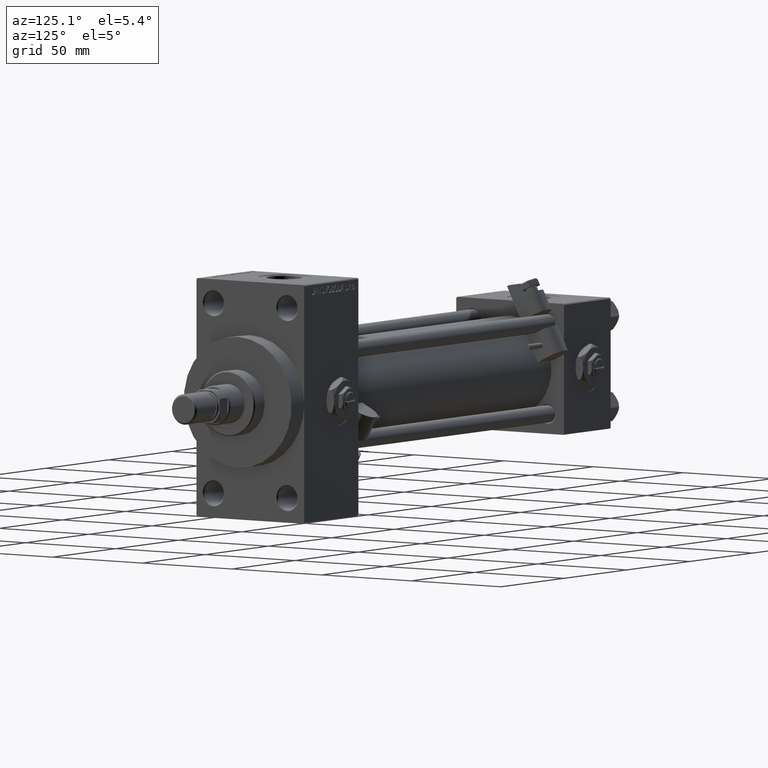
[diagram: clean part render]
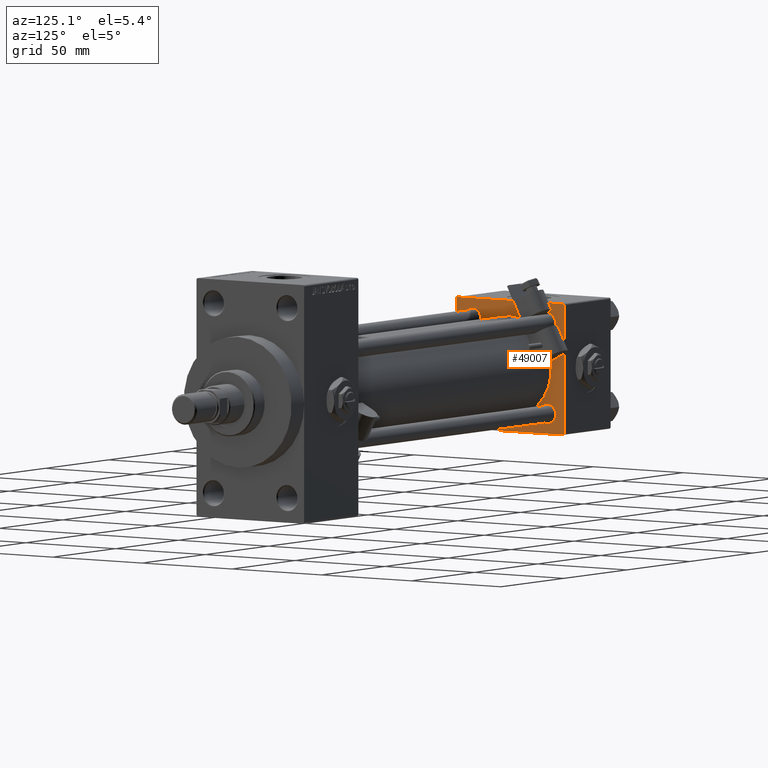
[diagram: same view with one face highlighted and labeled with its STEP entity id]
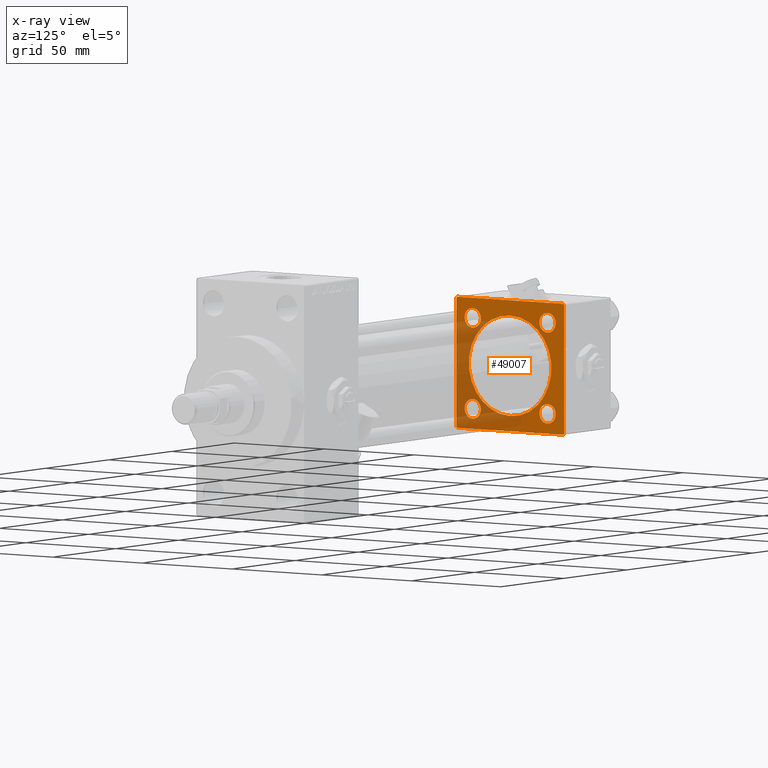
[diagram: x-ray of the same camera — body ghosted, the highlighted face saturated]
A machine part, auxiliary view. The second image highlights one B-rep face of the part: STEP entity #49007.
The next image is the same camera in x-ray: the body ghosted, the highlighted face saturated — about 37% of this face is hidden behind the body in this view.
In plain terms, the highlighted planar face has unit normal (-1, 0, 0).
Its self-contained STEP definition (entity closure, byte-faithful):
#218 = CIRCLE ( 'NONE', #6776, 4.500000000000031974 ) ;
#790 = ORIENTED_EDGE ( 'NONE', *, *, #47437, .T. ) ;
#1026 = AXIS2_PLACEMENT_3D ( 'NONE', #3993, #46137, #46654 ) ;
#1484 = EDGE_CURVE ( 'NONE', #17682, #4555, #42750, .T. ) ;
#1669 = CARTESIAN_POINT ( 'NONE',  ( 37.00000000000000000, -29.50000000000001066, -30.00000000000000711 ) ) ;
#2039 = EDGE_LOOP ( 'NONE', ( #11506, #39381 ) ) ;
#2183 = VERTEX_POINT ( 'NONE', #31940 ) ;
#2395 = FACE_BOUND ( 'NONE', #2520, .T. ) ;
#2519 = EDGE_CURVE ( 'NONE', #3929, #17682, #6015, .T. ) ;
#2520 = EDGE_LOOP ( 'NONE', ( #9484, #11871 ) ) ;
#2663 = ORIENTED_EDGE ( 'NONE', *, *, #2519, .T. ) ;
#2694 = VERTEX_POINT ( 'NONE', #21381 ) ;
#3086 = LINE ( 'NONE', #37545, #7937 ) ;
#3580 = AXIS2_PLACEMENT_3D ( 'NONE', #29633, #41476, #17059 ) ;
#3727 = AXIS2_PLACEMENT_3D ( 'NONE', #4929, #39636, #47351 ) ;
#3736 = VERTEX_POINT ( 'NONE', #48574 ) ;
#3929 = VERTEX_POINT ( 'NONE', #46997 ) ;
#3968 = VERTEX_POINT ( 'NONE', #26960 ) ;
#3993 = CARTESIAN_POINT ( 'NONE',  ( 37.00000000000000000, -20.84999999999999076, 20.85000000000000497 ) ) ;
#4364 = AXIS2_PLACEMENT_3D ( 'NONE', #6644, #17714, #33387 ) ;
#4555 = VERTEX_POINT ( 'NONE', #32903 ) ;
#4929 = CARTESIAN_POINT ( 'NONE',  ( 37.00000000000000000, -20.84999999999999076, -20.85000000000000497 ) ) ;
#5036 = EDGE_CURVE ( 'NONE', #3968, #18142, #18090, .T. ) ;
#5505 = VECTOR ( 'NONE', #31439, 999.9999999999998863 ) ;
#5896 = EDGE_CURVE ( 'NONE', #3736, #11153, #11575, .T. ) ;
#5996 = FACE_BOUND ( 'NONE', #2039, .T. ) ;
#6015 = LINE ( 'NONE', #37891, #32887 ) ;
#6061 = ORIENTED_EDGE ( 'NONE', *, *, #33288, .T. ) ;
#6226 = VERTEX_POINT ( 'NONE', #31072 ) ;
#6644 = CARTESIAN_POINT ( 'NONE',  ( 37.00000000000000000, -20.84999999999999076, -20.85000000000000497 ) ) ;
#6705 = ORIENTED_EDGE ( 'NONE', *, *, #32749, .T. ) ;
#6776 = AXIS2_PLACEMENT_3D ( 'NONE', #10111, #17060, #41477 ) ;
#7472 = VECTOR ( 'NONE', #23211, 1000.000000000000114 ) ;
#7937 = VECTOR ( 'NONE', #13637, 1000.000000000000000 ) ;
#9484 = ORIENTED_EDGE ( 'NONE', *, *, #27951, .T. ) ;
#10111 = CARTESIAN_POINT ( 'NONE',  ( 37.00000000000000000, 20.84999999999999787, 20.85000000000000142 ) ) ;
#10743 = EDGE_CURVE ( 'NONE', #2694, #45077, #28991, .T. ) ;
#11153 = VERTEX_POINT ( 'NONE', #35970 ) ;
#11506 = ORIENTED_EDGE ( 'NONE', *, *, #10743, .F. ) ;
#11575 = CIRCLE ( 'NONE', #18121, 4.500000000000031974 ) ;
#11842 = CARTESIAN_POINT ( 'NONE',  ( 37.00000000000000000, 20.84999999999999787, -20.85000000000000142 ) ) ;
#11871 = ORIENTED_EDGE ( 'NONE', *, *, #5896, .T. ) ;
#12278 = CARTESIAN_POINT ( 'NONE',  ( 37.00000000000000000, -30.00000000000000000, -29.50000000000001776 ) ) ;
#12612 = EDGE_CURVE ( 'NONE', #2183, #32136, #34463, .T. ) ;
#13057 = DIRECTION ( 'NONE',  ( 0.000000000000000000, -0.7071067811865474617, 0.7071067811865474617 ) ) ;
#13637 = DIRECTION ( 'NONE',  ( 0.000000000000000000, 0.000000000000000000, -1.000000000000000000 ) ) ;
#13963 = CARTESIAN_POINT ( 'NONE',  ( 37.00000000000000000, 0.000000000000000000, 0.000000000000000000 ) ) ;
#14479 = DIRECTION ( 'NONE',  ( -1.000000000000000000, 0.000000000000000000, -0.000000000000000000 ) ) ;
#14686 = DIRECTION ( 'NONE',  ( -1.000000000000000000, 0.000000000000000000, -0.000000000000000000 ) ) ;
#15034 = CARTESIAN_POINT ( 'NONE',  ( 37.00000000000000000, 29.99999999999999289, 30.00000000000000000 ) ) ;
#15205 = DIRECTION ( 'NONE',  ( 0.000000000000000000, 0.000000000000000000, 1.000000000000000000 ) ) ;
#15210 = CARTESIAN_POINT ( 'NONE',  ( 37.00000000000000000, -20.84999999999999076, 20.85000000000000497 ) ) ;
#15287 = EDGE_CURVE ( 'NONE', #41169, #42730, #34061, .T. ) ;
#15719 = CARTESIAN_POINT ( 'NONE',  ( 37.00000000000000000, -29.50000000000000000, -30.00000000000000711 ) ) ;
#15807 = CIRCLE ( 'NONE', #1026, 4.500000000000031974 ) ;
#15963 = ORIENTED_EDGE ( 'NONE', *, *, #5036, .T. ) ;
#16777 = AXIS2_PLACEMENT_3D ( 'NONE', #11842, #46283, #15205 ) ;
#17059 = DIRECTION ( 'NONE',  ( 0.000000000000000000, 0.000000000000000000, 1.000000000000000000 ) ) ;
#17060 = DIRECTION ( 'NONE',  ( -1.000000000000000000, 0.000000000000000000, -0.000000000000000000 ) ) ;
#17624 = CARTESIAN_POINT ( 'NONE',  ( 37.00000000000000000, 20.84999999999999787, 25.35000000000003340 ) ) ;
#17682 = VERTEX_POINT ( 'NONE', #32231 ) ;
#17714 = DIRECTION ( 'NONE',  ( -1.000000000000000000, 0.000000000000000000, -0.000000000000000000 ) ) ;
#17755 = EDGE_LOOP ( 'NONE', ( #36704, #19698, #26654, #6061, #2663, #27474, #34292, #6705 ) ) ;
#17758 = CARTESIAN_POINT ( 'NONE',  ( 37.00000000000000000, 29.99999999999999289, -30.00000000000000000 ) ) ;
#18090 = CIRCLE ( 'NONE', #44363, 4.500000000000031974 ) ;
#18121 = AXIS2_PLACEMENT_3D ( 'NONE', #38854, #38601, #34743 ) ;
#18142 = VERTEX_POINT ( 'NONE', #39034 ) ;
#18149 = VERTEX_POINT ( 'NONE', #12278 ) ;
#18273 = CARTESIAN_POINT ( 'NONE',  ( 37.00000000000000000, -20.84999999999999076, -25.35000000000003695 ) ) ;
#18536 = VERTEX_POINT ( 'NONE', #44321 ) ;
#18544 = DIRECTION ( 'NONE',  ( 0.000000000000000000, 0.000000000000000000, 1.000000000000000000 ) ) ;
#18887 = LINE ( 'NONE', #15034, #20925 ) ;
#19250 = CIRCLE ( 'NONE', #16777, 4.500000000000031974 ) ;
#19462 = EDGE_CURVE ( 'NONE', #18536, #26299, #33371, .T. ) ;
#19510 = ORIENTED_EDGE ( 'NONE', *, *, #46896, .T. ) ;
#19698 = ORIENTED_EDGE ( 'NONE', *, *, #34372, .T. ) ;
#20925 = VECTOR ( 'NONE', #46379, 1000.000000000000000 ) ;
#21381 = CARTESIAN_POINT ( 'NONE',  ( 37.00000000000000711, -2.602085213965210642E-15, 23.00000000000000000 ) ) ;
#21459 = LINE ( 'NONE', #1669, #39101 ) ;
#22201 = DIRECTION ( 'NONE',  ( 0.000000000000000000, 0.000000000000000000, 1.000000000000000000 ) ) ;
#22721 = CARTESIAN_POINT ( 'NONE',  ( 37.00000000000000000, 20.84999999999999787, 20.85000000000000142 ) ) ;
#23211 = DIRECTION ( 'NONE',  ( -0.000000000000000000, -0.7071067811865474617, -0.7071067811865474617 ) ) ;
#23272 = EDGE_LOOP ( 'NONE', ( #37448, #790 ) ) ;
#23332 = ORIENTED_EDGE ( 'NONE', *, *, #19462, .T. ) ;
#23481 = CARTESIAN_POINT ( 'NONE',  ( 37.00000000000000000, 29.99999999999999289, -29.50000000000000000 ) ) ;
#24070 = CIRCLE ( 'NONE', #46233, 23.00000000000000000 ) ;
#24380 = CARTESIAN_POINT ( 'NONE',  ( 37.00000000000000000, 29.49999999999999289, 30.00000000000000000 ) ) ;
#25521 = FACE_BOUND ( 'NONE', #23272, .T. ) ;
#26006 = EDGE_CURVE ( 'NONE', #45077, #2694, #24070, .T. ) ;
#26057 = DIRECTION ( 'NONE',  ( -1.000000000000000000, 0.000000000000000000, -0.000000000000000000 ) ) ;
#26299 = VERTEX_POINT ( 'NONE', #17624 ) ;
#26654 = ORIENTED_EDGE ( 'NONE', *, *, #29613, .F. ) ;
#26960 = CARTESIAN_POINT ( 'NONE',  ( 37.00000000000000000, -20.84999999999999076, 16.34999999999997300 ) ) ;
#27474 = ORIENTED_EDGE ( 'NONE', *, *, #1484, .T. ) ;
#27628 = VECTOR ( 'NONE', #13057, 1000.000000000000114 ) ;
#27951 = EDGE_CURVE ( 'NONE', #11153, #3736, #19250, .T. ) ;
#28099 = VERTEX_POINT ( 'NONE', #50331 ) ;
#28215 = EDGE_LOOP ( 'NONE', ( #15963, #19510 ) ) ;
#28737 = LINE ( 'NONE', #24380, #27628 ) ;
#28991 = CIRCLE ( 'NONE', #3580, 23.00000000000000000 ) ;
#29613 = EDGE_CURVE ( 'NONE', #28099, #6226, #18887, .T. ) ;
#29633 = CARTESIAN_POINT ( 'NONE',  ( 37.00000000000000711, -2.602085213965210642E-15, 0.000000000000000000 ) ) ;
#29814 = DIRECTION ( 'NONE',  ( 1.000000000000000000, -0.000000000000000000, 0.000000000000000000 ) ) ;
#29848 = AXIS2_PLACEMENT_3D ( 'NONE', #13963, #14479, #41215 ) ;
#29892 = FACE_BOUND ( 'NONE', #41610, .T. ) ;
#30691 = VECTOR ( 'NONE', #41912, 1000.000000000000000 ) ;
#31072 = CARTESIAN_POINT ( 'NONE',  ( 37.00000000000000000, 29.99999999999999289, -29.50000000000000000 ) ) ;
#31177 = CARTESIAN_POINT ( 'NONE',  ( 37.00000000000000000, -30.00000000000000000, 29.49999999999999289 ) ) ;
#31432 = CIRCLE ( 'NONE', #4364, 4.500000000000031974 ) ;
#31439 = DIRECTION ( 'NONE',  ( -0.000000000000000000, 0.7071067811865574537, 0.7071067811865376918 ) ) ;
#31940 = CARTESIAN_POINT ( 'NONE',  ( 37.00000000000000000, 29.49999999999997868, -30.00000000000000000 ) ) ;
#32136 = VERTEX_POINT ( 'NONE', #15719 ) ;
#32231 = CARTESIAN_POINT ( 'NONE',  ( 37.00000000000000000, -29.49999999999998579, 29.99999999999999289 ) ) ;
#32749 = EDGE_CURVE ( 'NONE', #18149, #32136, #21459, .T. ) ;
#32887 = VECTOR ( 'NONE', #45072, 1000.000000000000000 ) ;
#32903 = CARTESIAN_POINT ( 'NONE',  ( 37.00000000000000000, -30.00000000000000000, 29.49999999999999289 ) ) ;
#33055 = EDGE_CURVE ( 'NONE', #4555, #18149, #3086, .T. ) ;
#33174 = CARTESIAN_POINT ( 'NONE',  ( 37.00000000000000711, -2.602085213965210642E-15, 0.000000000000000000 ) ) ;
#33288 = EDGE_CURVE ( 'NONE', #28099, #3929, #28737, .T. ) ;
#33371 = CIRCLE ( 'NONE', #35038, 4.500000000000031974 ) ;
#33387 = DIRECTION ( 'NONE',  ( 0.000000000000000000, 0.000000000000000000, 1.000000000000000000 ) ) ;
#34061 = CIRCLE ( 'NONE', #3727, 4.500000000000031974 ) ;
#34292 = ORIENTED_EDGE ( 'NONE', *, *, #33055, .T. ) ;
#34372 = EDGE_CURVE ( 'NONE', #2183, #6226, #39413, .T. ) ;
#34463 = LINE ( 'NONE', #17758, #30691 ) ;
#34743 = DIRECTION ( 'NONE',  ( 0.000000000000000000, 0.000000000000000000, 1.000000000000000000 ) ) ;
#35038 = AXIS2_PLACEMENT_3D ( 'NONE', #22721, #26057, #22201 ) ;
#35970 = CARTESIAN_POINT ( 'NONE',  ( 37.00000000000000000, 20.84999999999999787, -25.35000000000003340 ) ) ;
#36704 = ORIENTED_EDGE ( 'NONE', *, *, #12612, .F. ) ;
#37448 = ORIENTED_EDGE ( 'NONE', *, *, #15287, .T. ) ;
#37545 = CARTESIAN_POINT ( 'NONE',  ( 37.00000000000000000, -30.00000000000000000, 29.99999999999999289 ) ) ;
#37891 = CARTESIAN_POINT ( 'NONE',  ( 37.00000000000000000, 29.99999999999999289, 30.00000000000000000 ) ) ;
#38601 = DIRECTION ( 'NONE',  ( -1.000000000000000000, 0.000000000000000000, -0.000000000000000000 ) ) ;
#38854 = CARTESIAN_POINT ( 'NONE',  ( 37.00000000000000000, 20.84999999999999787, -20.85000000000000142 ) ) ;
#39034 = CARTESIAN_POINT ( 'NONE',  ( 37.00000000000000000, -20.84999999999999076, 25.35000000000003695 ) ) ;
#39101 = VECTOR ( 'NONE', #44849, 1000.000000000000114 ) ;
#39381 = ORIENTED_EDGE ( 'NONE', *, *, #26006, .F. ) ;
#39413 = LINE ( 'NONE', #23481, #5505 ) ;
#39636 = DIRECTION ( 'NONE',  ( -1.000000000000000000, 0.000000000000000000, -0.000000000000000000 ) ) ;
#41146 = DIRECTION ( 'NONE',  ( 0.000000000000000000, 0.000000000000000000, 1.000000000000000000 ) ) ;
#41169 = VERTEX_POINT ( 'NONE', #18273 ) ;
#41215 = DIRECTION ( 'NONE',  ( -0.000000000000000000, 0.000000000000000000, 1.000000000000000000 ) ) ;
#41474 = PLANE ( 'NONE',  #29848 ) ;
#41476 = DIRECTION ( 'NONE',  ( 1.000000000000000000, -0.000000000000000000, 0.000000000000000000 ) ) ;
#41477 = DIRECTION ( 'NONE',  ( 0.000000000000000000, 0.000000000000000000, 1.000000000000000000 ) ) ;
#41610 = EDGE_LOOP ( 'NONE', ( #23332, #44930 ) ) ;
#41912 = DIRECTION ( 'NONE',  ( 0.000000000000000000, -1.000000000000000000, -1.156482317317871725E-16 ) ) ;
#41991 = CARTESIAN_POINT ( 'NONE',  ( 37.00000000000000000, -20.84999999999999076, -16.34999999999997300 ) ) ;
#42240 = FACE_BOUND ( 'NONE', #28215, .T. ) ;
#42730 = VERTEX_POINT ( 'NONE', #41991 ) ;
#42750 = LINE ( 'NONE', #31177, #7472 ) ;
#43348 = CARTESIAN_POINT ( 'NONE',  ( 37.00000000000000711, 2.146024240737016609E-16, -23.00000000000000000 ) ) ;
#44321 = CARTESIAN_POINT ( 'NONE',  ( 37.00000000000000000, 20.84999999999999787, 16.34999999999996945 ) ) ;
#44363 = AXIS2_PLACEMENT_3D ( 'NONE', #15210, #14686, #18544 ) ;
#44849 = DIRECTION ( 'NONE',  ( 0.000000000000000000, 0.7071067811865474617, -0.7071067811865474617 ) ) ;
#44930 = ORIENTED_EDGE ( 'NONE', *, *, #47045, .T. ) ;
#45072 = DIRECTION ( 'NONE',  ( 0.000000000000000000, -1.000000000000000000, -1.156482317317871725E-16 ) ) ;
#45077 = VERTEX_POINT ( 'NONE', #43348 ) ;
#45564 = FACE_OUTER_BOUND ( 'NONE', #17755, .T. ) ;
#46137 = DIRECTION ( 'NONE',  ( -1.000000000000000000, 0.000000000000000000, -0.000000000000000000 ) ) ;
#46233 = AXIS2_PLACEMENT_3D ( 'NONE', #33174, #29814, #41146 ) ;
#46283 = DIRECTION ( 'NONE',  ( -1.000000000000000000, 0.000000000000000000, -0.000000000000000000 ) ) ;
#46379 = DIRECTION ( 'NONE',  ( 0.000000000000000000, 0.000000000000000000, -1.000000000000000000 ) ) ;
#46654 = DIRECTION ( 'NONE',  ( 0.000000000000000000, 0.000000000000000000, 1.000000000000000000 ) ) ;
#46896 = EDGE_CURVE ( 'NONE', #18142, #3968, #15807, .T. ) ;
#46997 = CARTESIAN_POINT ( 'NONE',  ( 37.00000000000000000, 29.49999999999999289, 30.00000000000000000 ) ) ;
#47045 = EDGE_CURVE ( 'NONE', #26299, #18536, #218, .T. ) ;
#47351 = DIRECTION ( 'NONE',  ( 0.000000000000000000, 0.000000000000000000, 1.000000000000000000 ) ) ;
#47437 = EDGE_CURVE ( 'NONE', #42730, #41169, #31432, .T. ) ;
#48574 = CARTESIAN_POINT ( 'NONE',  ( 37.00000000000000000, 20.84999999999999787, -16.34999999999996945 ) ) ;
#49007 = ADVANCED_FACE ( 'NONE', ( #25521, #2395, #42240, #29892, #5996, #45564 ), #41474, .F. ) ;
#50331 = CARTESIAN_POINT ( 'NONE',  ( 37.00000000000000000, 29.99999999999999289, 29.50000000000000000 ) ) ;